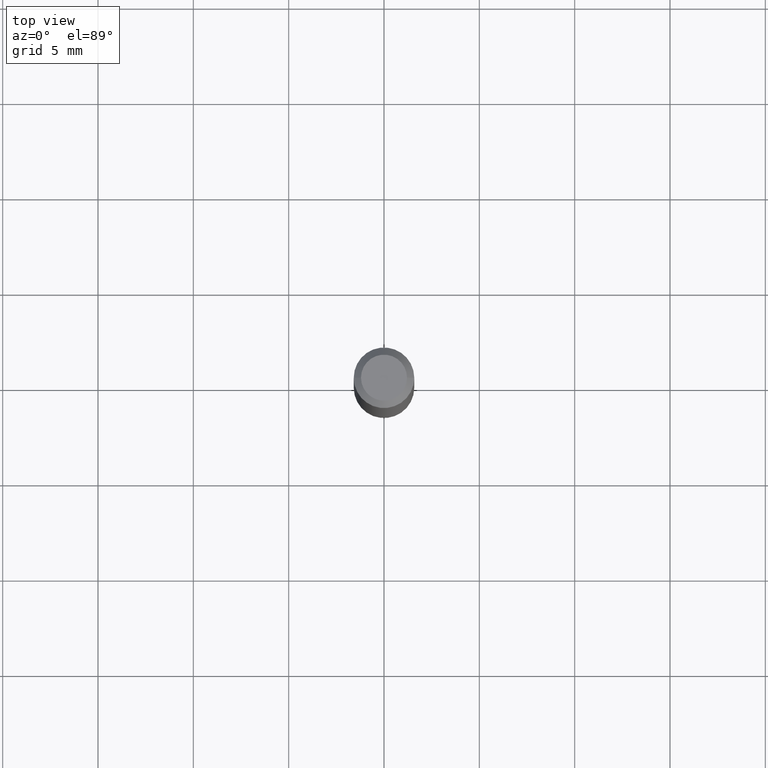
[diagram: clean part render]
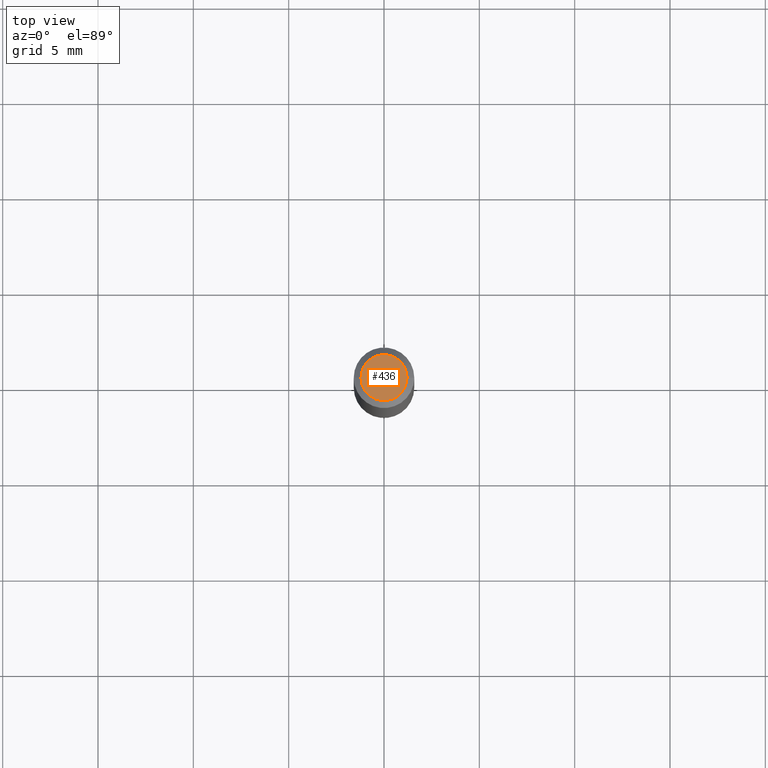
[diagram: same view with one face highlighted and labeled with its STEP entity id]
A machine part, top view. The second image highlights one B-rep face of the part: STEP entity #436.
In plain terms, the highlighted planar face has unit normal (0, -0, -1).
Its self-contained STEP definition (entity closure, byte-faithful):
#45 = DIRECTION ( 'NONE',  ( 1.000000000000000000, -6.982962677686267499E-15, 4.852736867747366768E-29 ) ) ;
#57 = CARTESIAN_POINT ( 'NONE',  ( 0.04749999999999999362, -4.035134999187574186E-16, 2.354505479474186932E-16 ) ) ;
#69 = EDGE_LOOP ( 'NONE', ( #98, #410 ) ) ;
#70 = DIRECTION ( 'NONE',  ( 1.000000000000000000, -6.982962677686267499E-15, 4.852736867747366768E-29 ) ) ;
#98 = ORIENTED_EDGE ( 'NONE', *, *, #253, .T. ) ;
#101 = VERTEX_POINT ( 'NONE', #57 ) ;
#136 = CARTESIAN_POINT ( 'NONE',  ( -0.04749999999999999362, 3.578768372314215436E-16, 2.354505479474137135E-16 ) ) ;
#178 = DIRECTION ( 'NONE',  ( 2.438088387897960049E-29, -3.491481338843145188E-15, -1.000000000000000000 ) ) ;
#212 = FACE_OUTER_BOUND ( 'NONE', #69, .T. ) ;
#240 = CARTESIAN_POINT ( 'NONE',  ( -5.757869704046039586E-45, 8.220711943787967025E-31, 2.354505479474161294E-16 ) ) ;
#253 = EDGE_CURVE ( 'NONE', #420, #101, #390, .T. ) ;
#267 = DIRECTION ( 'NONE',  ( -2.445468806185136597E-29, 3.491481338843145583E-15, 1.000000000000000000 ) ) ;
#293 = AXIS2_PLACEMENT_3D ( 'NONE', #437, #267, #45 ) ;
#298 = AXIS2_PLACEMENT_3D ( 'NONE', #240, #389, #70 ) ;
#311 = DIRECTION ( 'NONE',  ( -1.000000000000000000, 6.982962677686265922E-15, -4.876176775795935793E-29 ) ) ;
#337 = PLANE ( 'NONE',  #349 ) ;
#349 = AXIS2_PLACEMENT_3D ( 'NONE', #351, #178, #311 ) ;
#351 = CARTESIAN_POINT ( 'NONE',  ( 3.316907271900976096E-16, 0.04749999999999999362, -4.812008962134135024E-17 ) ) ;
#363 = CIRCLE ( 'NONE', #298, 0.04749999999999999362 ) ;
#389 = DIRECTION ( 'NONE',  ( -2.445468806185136597E-29, 3.491481338843145583E-15, 1.000000000000000000 ) ) ;
#390 = CIRCLE ( 'NONE', #293, 0.04749999999999999362 ) ;
#410 = ORIENTED_EDGE ( 'NONE', *, *, #432, .T. ) ;
#420 = VERTEX_POINT ( 'NONE', #136 ) ;
#432 = EDGE_CURVE ( 'NONE', #101, #420, #363, .T. ) ;
#436 = ADVANCED_FACE ( 'NONE', ( #212 ), #337, .F. ) ;
#437 = CARTESIAN_POINT ( 'NONE',  ( -5.757869704046039586E-45, 8.220711943787967025E-31, 2.354505479474161294E-16 ) ) ;